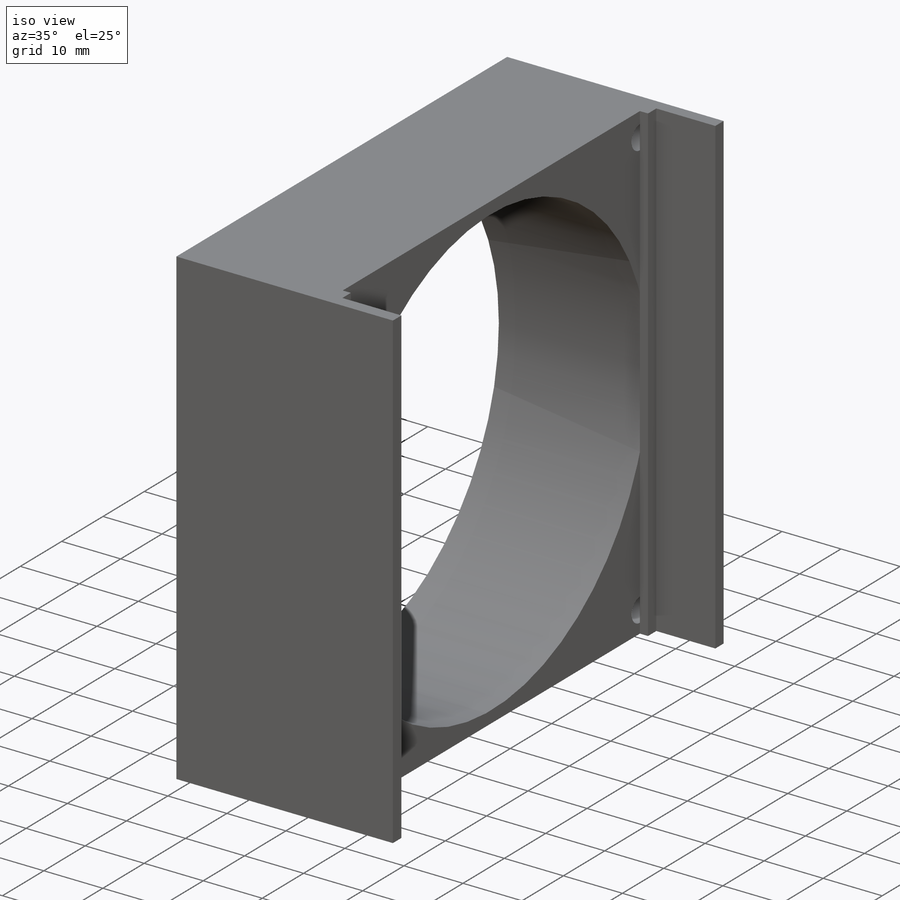
[diagram: iso view]
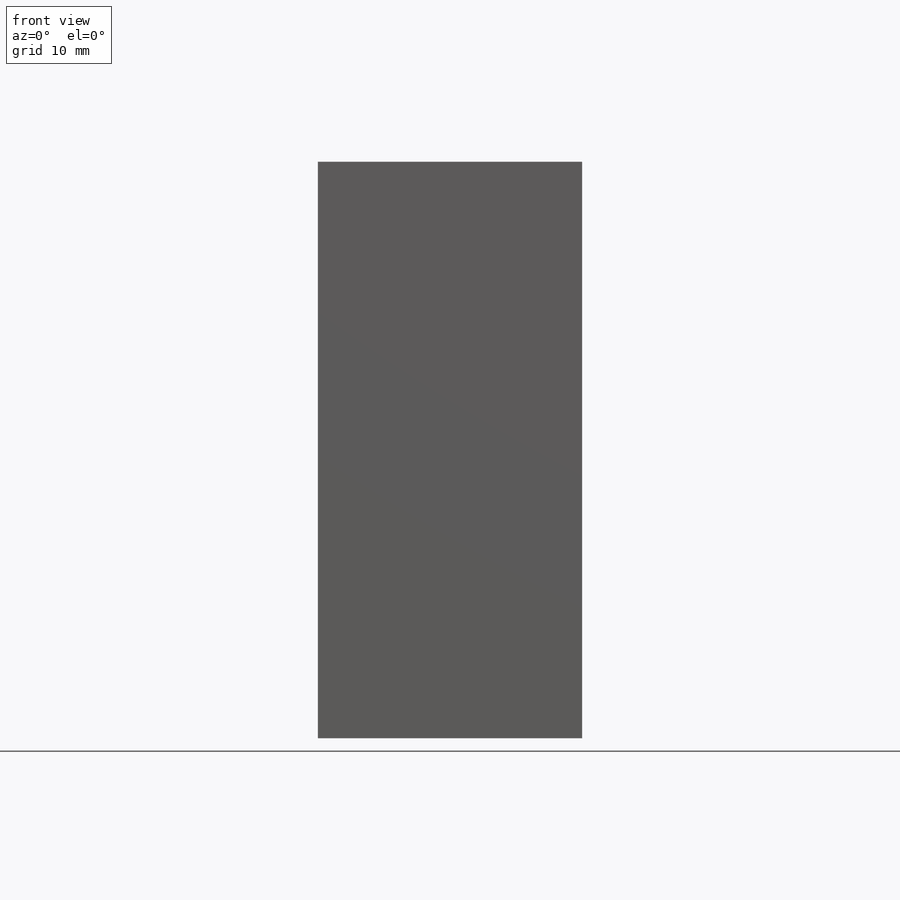
[diagram: front view]
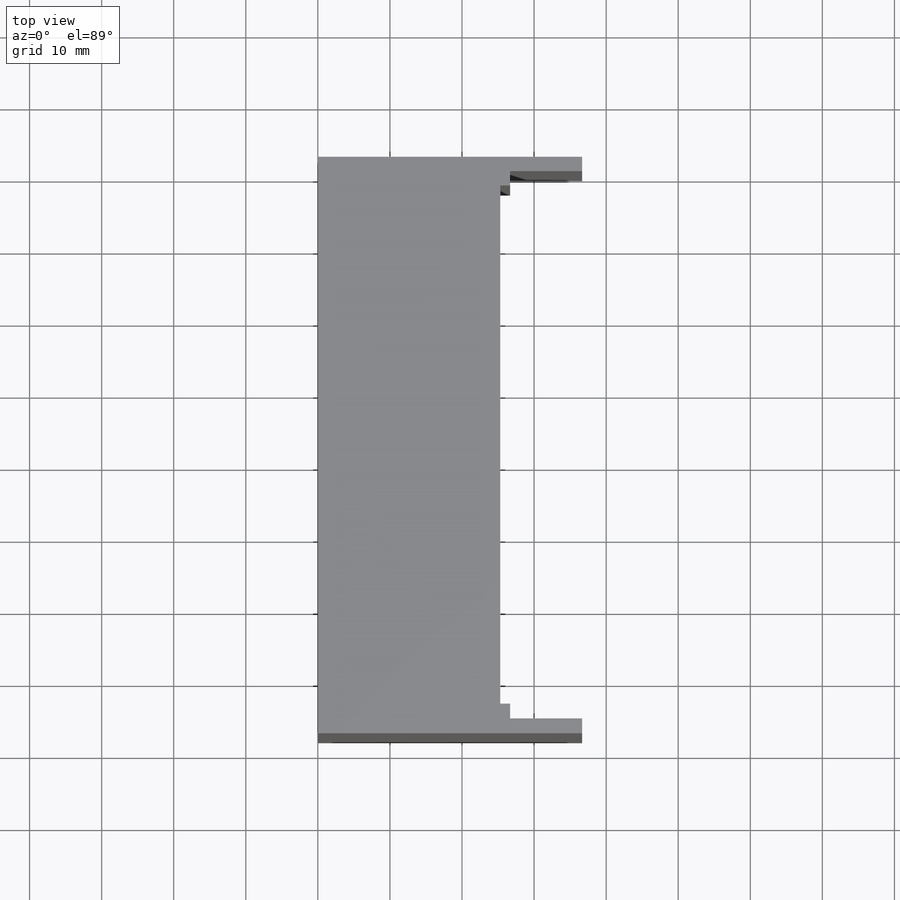
[diagram: top view]
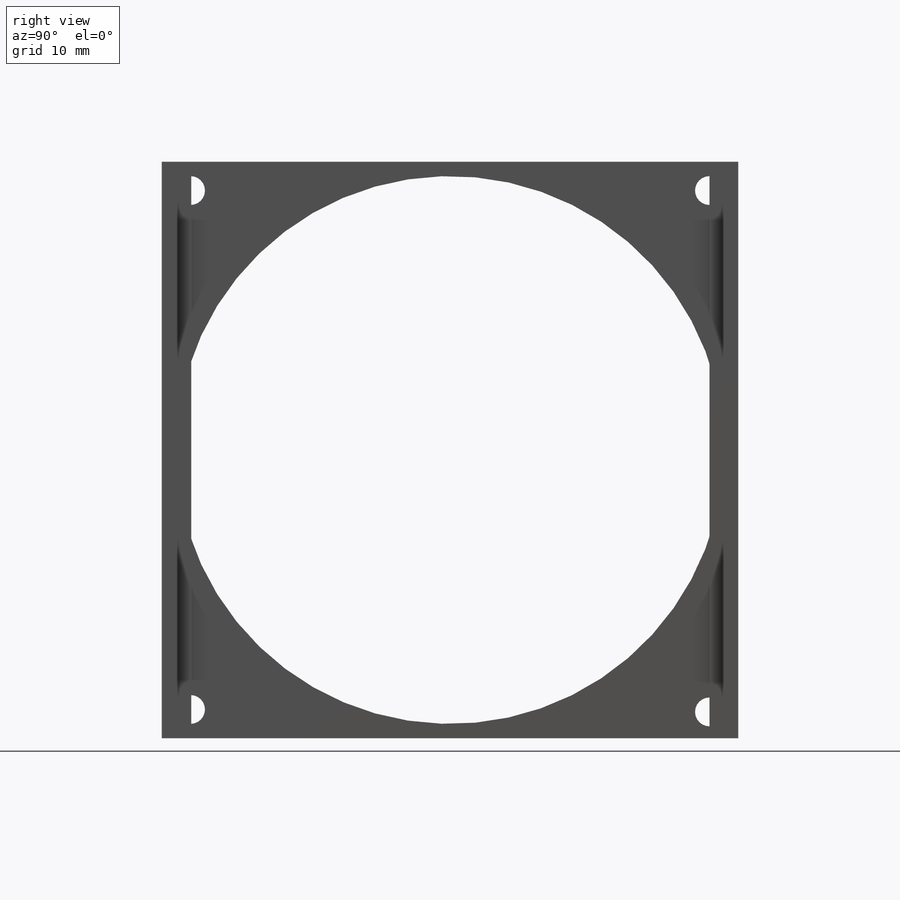
[diagram: right view]
SOLIDWORKS PART (.sldprt)
format: sldprt  version: not decoded by parser v0  size: 222,720 bytes
history: native  units: mm
features: sketch x7, extrude x4, cut_extrude x3, material x1 (+11 scaffold rows collapsed)
feature tree (26):
  scaffold x11  (default folders/planes/origin — collapsed)
  material  "Material <not specified>"
  sketch  "Sketch1"  dims[D1=80.0mm D2=80.0mm]
  extrude  "Boss-Extrude1"  Depth=25.3mm
  sketch  "Sketch2"  dims[D1=~38.103131mm]
  cut_extrude  "Cut-Extrude1"  Depth=25.3mm
  sketch  "Sketch4"  dims[D1=4.0mm D2=4.0mm]
  cut_extrude  "Cut-Extrude2"  Depth=25.3mm
  sketch  "Sketch9"  dims[D1=4.0mm D2=4.0mm D3=4.0mm D4=4.0mm D5=~3.659941mm D6=4.0mm]
  cut_extrude  "Cut-Extrude3"  Depth=25.3mm
  sketch  "Sketch10"
  extrude  "Boss-Extrude2"  Depth=1.37mm
  sketch  "Sketch11"
  extrude  "Boss-Extrude3"  Depth=10mm
  sketch  "Sketch12"
  extrude  "Boss-Extrude4"  Depth=10mm
decode coverage: 11 of 14 modeling features carry decoded parameters
note: ~ marks probable driven/reference dimensions
note: suppression state not decoded; provenance and decode notes live in map.json
